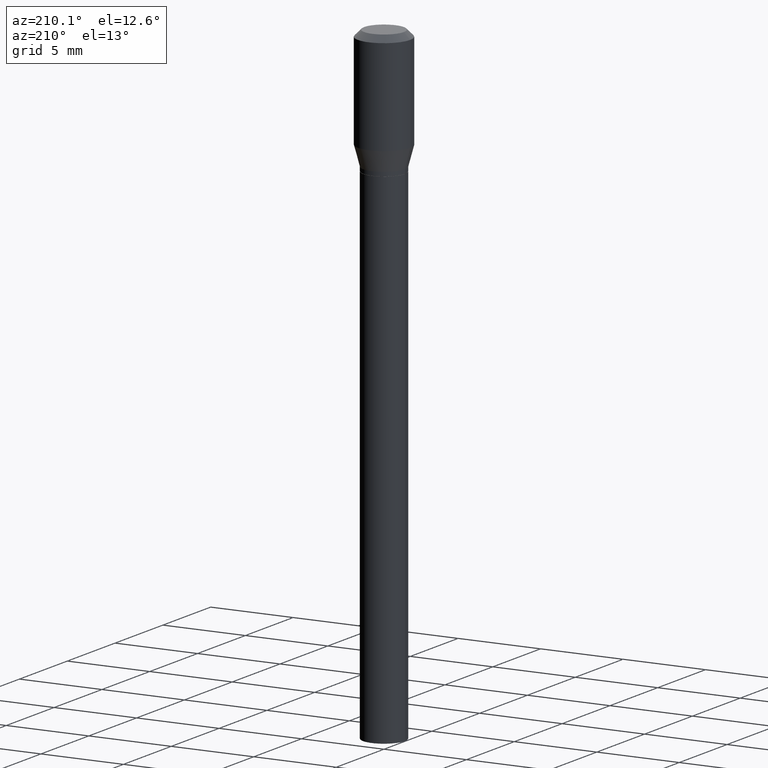
[diagram: clean part render]
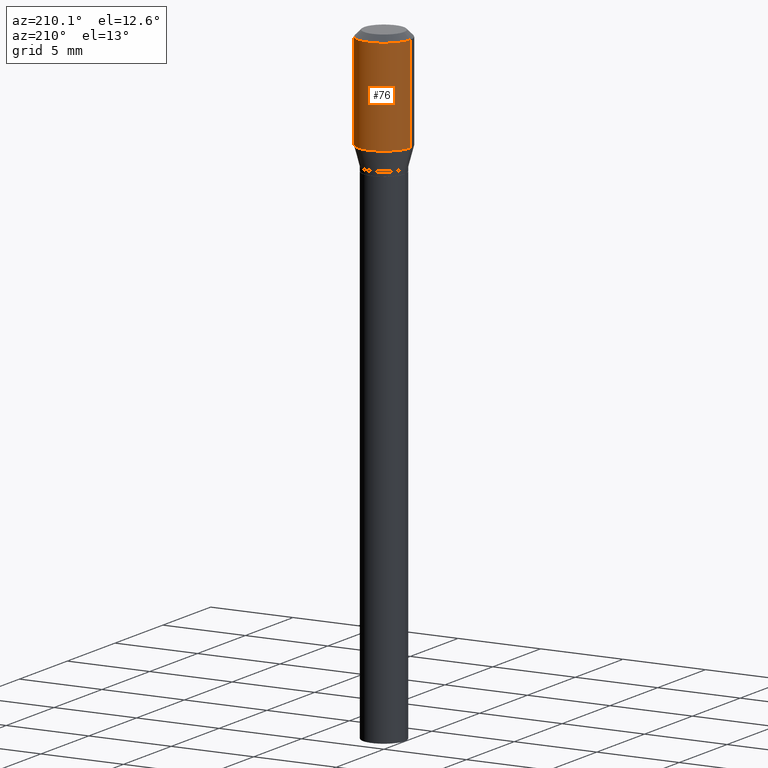
[diagram: same view with one face highlighted and labeled with its STEP entity id]
A machine part, auxiliary view. The second image highlights one B-rep face of the part: STEP entity #76.
In plain terms, the highlighted cylindrical surface (edge-blend (fillet) strip) has radius 1.5875 mm, axis along (-0, 0, 1).
Its self-contained STEP definition (entity closure, byte-faithful):
#12 = DIRECTION ( 'NONE',  ( -2.445468806185136597E-29, 3.491481338843145583E-15, 1.000000000000000000 ) ) ;
#32 = DIRECTION ( 'NONE',  ( 1.000000000000000000, -6.982962677686265133E-15, 0.000000000000000000 ) ) ;
#33 = AXIS2_PLACEMENT_3D ( 'NONE', #190, #12, #58 ) ;
#58 = DIRECTION ( 'NONE',  ( 1.000000000000000000, -6.982962677686266711E-15, 4.876176775795935793E-29 ) ) ;
#76 = ADVANCED_FACE ( 'NONE', ( #79 ), #160, .T. ) ;
#79 = FACE_OUTER_BOUND ( 'NONE', #217, .T. ) ;
#80 = DIRECTION ( 'NONE',  ( -2.445468806185136877E-29, 3.491481338843145188E-15, 1.000000000000000000 ) ) ;
#96 = EDGE_CURVE ( 'NONE', #219, #115, #216, .T. ) ;
#111 = CARTESIAN_POINT ( 'NONE',  ( 0.06250000000000000000, -1.286084933741889410E-15, -0.2433493649053893038 ) ) ;
#115 = VERTEX_POINT ( 'NONE', #462 ) ;
#125 = DIRECTION ( 'NONE',  ( -2.445468806185136877E-29, 3.491481338843145188E-15, 1.000000000000000000 ) ) ;
#128 = EDGE_CURVE ( 'NONE', #366, #156, #308, .T. ) ;
#156 = VERTEX_POINT ( 'NONE', #324 ) ;
#160 = CYLINDRICAL_SURFACE ( 'NONE', #33, 0.06250000000000000000 ) ;
#164 = LINE ( 'NONE', #313, #413 ) ;
#185 = ORIENTED_EDGE ( 'NONE', *, *, #337, .T. ) ;
#190 = CARTESIAN_POINT ( 'NONE',  ( 0.000000000000000000, 0.000000000000000000, 0.000000000000000000 ) ) ;
#200 = AXIS2_PLACEMENT_3D ( 'NONE', #465, #399, #319 ) ;
#216 = CIRCLE ( 'NONE', #200, 0.06250000000000000000 ) ;
#217 = EDGE_LOOP ( 'NONE', ( #266, #185, #446, #397 ) ) ;
#219 = VERTEX_POINT ( 'NONE', #345 ) ;
#266 = ORIENTED_EDGE ( 'NONE', *, *, #128, .T. ) ;
#282 = CARTESIAN_POINT ( 'NONE',  ( 5.951032808810935240E-30, -8.496497663864978389E-16, -0.2433493649053893038 ) ) ;
#292 = VECTOR ( 'NONE', #80, 39.37007874015748143 ) ;
#308 = CIRCLE ( 'NONE', #340, 0.06250000000000000000 ) ;
#313 = CARTESIAN_POINT ( 'NONE',  ( -0.06250000000000000000, 4.440892098500626162E-16, -3.074334431409316114E-30 ) ) ;
#319 = DIRECTION ( 'NONE',  ( 1.000000000000000000, -6.982962677686266711E-15, 0.000000000000000000 ) ) ;
#324 = CARTESIAN_POINT ( 'NONE',  ( -0.06250000000000000000, -4.055605565364353213E-16, -0.2433493649053893038 ) ) ;
#336 = CARTESIAN_POINT ( 'NONE',  ( 0.06250000000000000000, -4.364351673553916694E-16, 3.047610484872459871E-30 ) ) ;
#337 = EDGE_CURVE ( 'NONE', #156, #115, #164, .T. ) ;
#340 = AXIS2_PLACEMENT_3D ( 'NONE', #282, #442, #32 ) ;
#345 = CARTESIAN_POINT ( 'NONE',  ( 0.06250000000000000000, -4.888073874380388472E-16, -0.01499999999999999944 ) ) ;
#366 = VERTEX_POINT ( 'NONE', #111 ) ;
#397 = ORIENTED_EDGE ( 'NONE', *, *, #452, .F. ) ;
#399 = DIRECTION ( 'NONE',  ( -2.445468806185136597E-29, 3.491481338843145583E-15, 1.000000000000000000 ) ) ;
#413 = VECTOR ( 'NONE', #125, 39.37007874015748143 ) ;
#417 = LINE ( 'NONE', #336, #292 ) ;
#442 = DIRECTION ( 'NONE',  ( -2.445468806185136597E-29, 3.491481338843145583E-15, 1.000000000000000000 ) ) ;
#446 = ORIENTED_EDGE ( 'NONE', *, *, #96, .F. ) ;
#452 = EDGE_CURVE ( 'NONE', #366, #219, #417, .T. ) ;
#462 = CARTESIAN_POINT ( 'NONE',  ( -0.06250000000000000000, -6.921783384509894486E-18, -0.01499999999999999944 ) ) ;
#465 = CARTESIAN_POINT ( 'NONE',  ( 3.668203209277705088E-31, -5.237222008264718399E-17, -0.01499999999999999944 ) ) ;